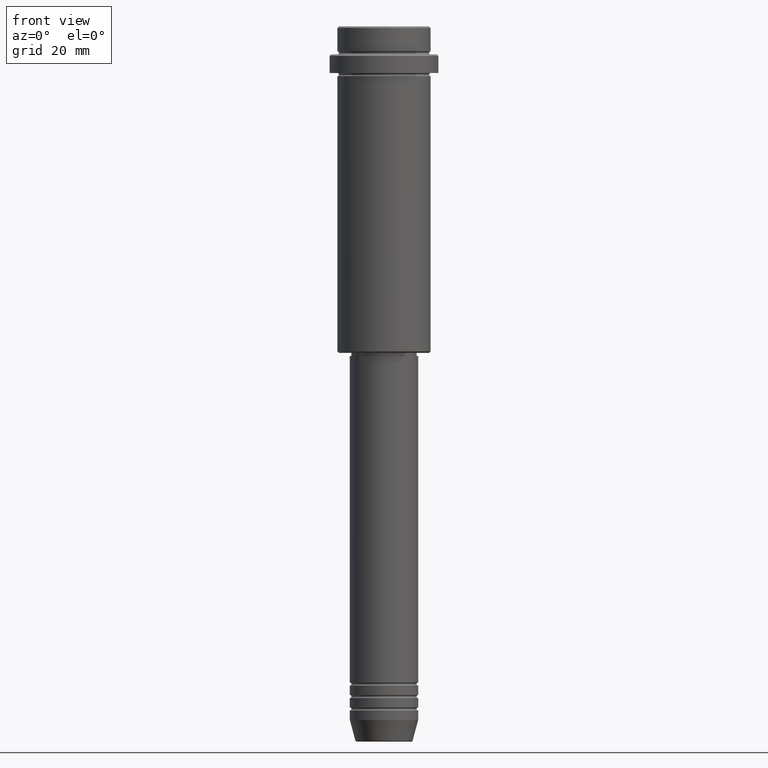
[diagram: clean part render]
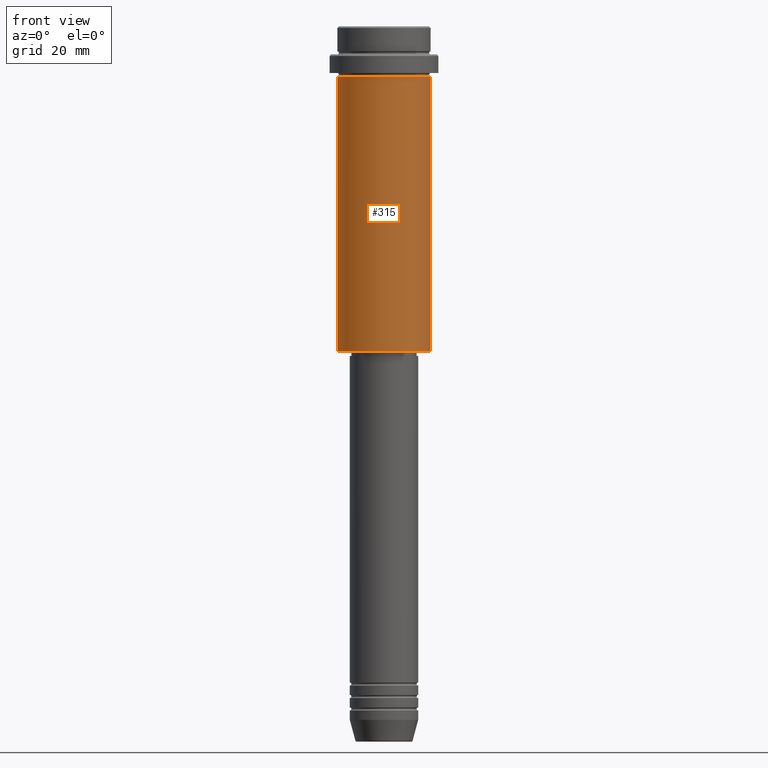
[diagram: same view with one face highlighted and labeled with its STEP entity id]
A machine part, front view. The second image highlights one B-rep face of the part: STEP entity #315.
In plain terms, the highlighted cylindrical surface (partial cylindrical patch) has radius 15 mm, axis along (-0, -0, 1).
Its self-contained STEP definition (entity closure, byte-faithful):
#32 = CYLINDRICAL_SURFACE ( 'NONE', #741, 15.00000000000000000 ) ;
#51 = FACE_OUTER_BOUND ( 'NONE', #97, .T. ) ;
#60 = ORIENTED_EDGE ( 'NONE', *, *, #980, .F. ) ;
#97 = EDGE_LOOP ( 'NONE', ( #60, #828, #1025, #233 ) ) ;
#138 = DIRECTION ( 'NONE',  ( 1.000000000000000000, 0.000000000000000000, 0.000000000000000000 ) ) ;
#166 = DIRECTION ( 'NONE',  ( -1.000000000000000000, 0.000000000000000000, 0.000000000000000000 ) ) ;
#193 = EDGE_CURVE ( 'NONE', #341, #1099, #664, .T. ) ;
#206 = CIRCLE ( 'NONE', #763, 15.00000000000000000 ) ;
#210 = LINE ( 'NONE', #314, #1366 ) ;
#233 = ORIENTED_EDGE ( 'NONE', *, *, #1247, .F. ) ;
#314 = CARTESIAN_POINT ( 'NONE',  ( -15.00000000000000000, 1.836970198721029589E-15, 0.000000000000000000 ) ) ;
#315 = ADVANCED_FACE ( 'NONE', ( #51 ), #32, .T. ) ;
#341 = VERTEX_POINT ( 'NONE', #1037 ) ;
#384 = EDGE_CURVE ( 'NONE', #996, #341, #206, .T. ) ;
#414 = VERTEX_POINT ( 'NONE', #1049 ) ;
#592 = CARTESIAN_POINT ( 'NONE',  ( 0.000000000000000000, 0.000000000000000000, -16.00000000000000000 ) ) ;
#664 = LINE ( 'NONE', #682, #1402 ) ;
#682 = CARTESIAN_POINT ( 'NONE',  ( 15.00000000000000000, 0.000000000000000000, 0.000000000000000000 ) ) ;
#684 = DIRECTION ( 'NONE',  ( -0.000000000000000000, -0.000000000000000000, 1.000000000000000000 ) ) ;
#705 = CARTESIAN_POINT ( 'NONE',  ( 0.000000000000000000, 0.000000000000000000, 0.000000000000000000 ) ) ;
#714 = CARTESIAN_POINT ( 'NONE',  ( 0.000000000000000000, 0.000000000000000000, -104.4999999999999432 ) ) ;
#741 = AXIS2_PLACEMENT_3D ( 'NONE', #705, #811, #1244 ) ;
#763 = AXIS2_PLACEMENT_3D ( 'NONE', #714, #1152, #166 ) ;
#811 = DIRECTION ( 'NONE',  ( -0.000000000000000000, -0.000000000000000000, 1.000000000000000000 ) ) ;
#828 = ORIENTED_EDGE ( 'NONE', *, *, #384, .T. ) ;
#872 = CARTESIAN_POINT ( 'NONE',  ( -15.00000000000000000, 1.836970198721029589E-15, -104.4999999999999432 ) ) ;
#930 = CARTESIAN_POINT ( 'NONE',  ( 15.00000000000000178, 0.000000000000000000, -16.00000000000000000 ) ) ;
#980 = EDGE_CURVE ( 'NONE', #996, #414, #210, .T. ) ;
#982 = DIRECTION ( 'NONE',  ( -0.000000000000000000, -0.000000000000000000, 1.000000000000000000 ) ) ;
#996 = VERTEX_POINT ( 'NONE', #872 ) ;
#1025 = ORIENTED_EDGE ( 'NONE', *, *, #193, .T. ) ;
#1037 = CARTESIAN_POINT ( 'NONE',  ( 15.00000000000000000, 0.000000000000000000, -104.4999999999999432 ) ) ;
#1049 = CARTESIAN_POINT ( 'NONE',  ( -15.00000000000000355, 1.836970198721029983E-15, -16.00000000000000000 ) ) ;
#1099 = VERTEX_POINT ( 'NONE', #930 ) ;
#1152 = DIRECTION ( 'NONE',  ( -0.000000000000000000, -0.000000000000000000, 1.000000000000000000 ) ) ;
#1201 = DIRECTION ( 'NONE',  ( -0.000000000000000000, -0.000000000000000000, 1.000000000000000000 ) ) ;
#1244 = DIRECTION ( 'NONE',  ( 1.000000000000000000, 0.000000000000000000, 0.000000000000000000 ) ) ;
#1247 = EDGE_CURVE ( 'NONE', #414, #1099, #1408, .T. ) ;
#1318 = AXIS2_PLACEMENT_3D ( 'NONE', #592, #684, #138 ) ;
#1366 = VECTOR ( 'NONE', #982, 1000.000000000000000 ) ;
#1402 = VECTOR ( 'NONE', #1201, 1000.000000000000000 ) ;
#1408 = CIRCLE ( 'NONE', #1318, 15.00000000000000178 ) ;